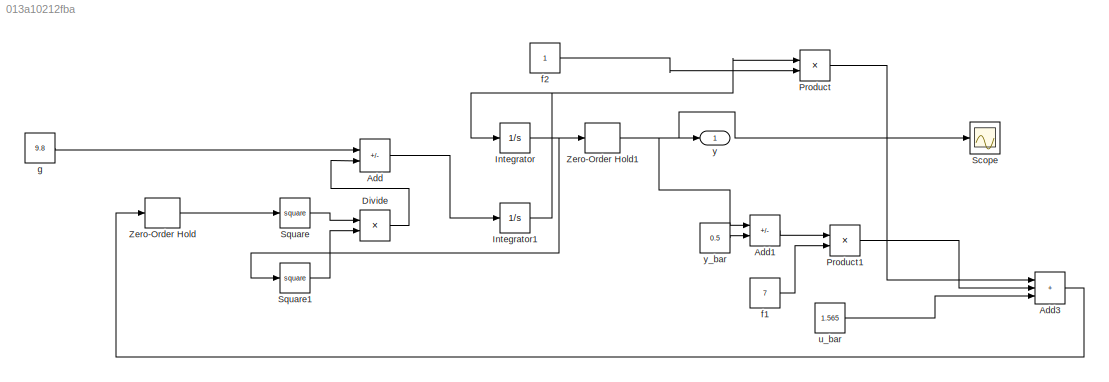
MODEL slx_013a10212fba
KIND model
CONFIG AbsTol = auto
CONFIG EnableMultiTasking = off
CONFIG FixedStep = auto
CONFIG MaxStep = auto
CONFIG MinStep = auto
CONFIG RelTol = 1e-3
CONFIG SampleTimeConstraint = Unconstrained
CONFIG SolverName = VariableStepAuto
CONFIG StartTime = 0.0
CONFIG StopTime = 50
BLOCK [Sum] Add
  IconShape = rectangular
  Inputs = +-
  Ports = [2, 1]
BLOCK [Sum] Add1
  IconShape = rectangular
  Inputs = +-
  Ports = [2, 1]
BLOCK [Sum] Add3
  IconShape = rectangular
  Inputs = +++
  Ports = [3, 1]
BLOCK [Product] Divide
  Inputs = */
  Ports = [2, 1]
BLOCK [Integrator] Integrator
  InitialCondition = 1.3
  Ports = [1, 1]
BLOCK [Integrator] Integrator1
  InitialCondition = 0.5
  Ports = [1, 1]
BLOCK [Product] Product
  Ports = [2, 1]
BLOCK [Product] Product1
  Ports = [2, 1]
BLOCK [Scope] Scope
  Floating = off
  NumInputPorts = 1
  Ports = [1]
  ScopeSpecificationString = Simulink.scopes.TimeScopeBlockCfg('CurrentConfiguration', extmgr.ConfigurationSet(extmgr.Configuration('Core','General UI',true),extmgr.Configuration('Core','Source UI',true),extmgr.Configuration('Sources','WiredSimulink',true),extmgr.Configuration('Visuals','Time Domain',true,'SerializedDisplays',{struct('MinYLimReal','0.13486','MaxYLimReal','1.42946','YLabelReal','','MinYLimMag','0.13486','MaxYL...<+1363ch>
BLOCK [Math] Square
  Operator = square
  Ports = [1, 1]
BLOCK [Math] Square1
  Operator = square
  Ports = [1, 1]
BLOCK [ZeroOrderHold] Zero-Order Hold
  SampleTime = -1
BLOCK [ZeroOrderHold] Zero-Order Hold1
  SampleTime = 0.12
BLOCK [Constant] f1
  Value = 7
BLOCK [Constant] f2
BLOCK [Constant] g
  Value = 9.8
BLOCK [Constant] u_bar
  Value = 1.565
BLOCK [Outport] y
BLOCK [Constant] y_bar
  Value = 0.5
LINE Add1:1 -> Product1:1
LINE Add3:1 -> Zero-Order Hold:1
LINE Add:1 -> Integrator1:1
LINE Divide:1 -> Add:2
NET Integrator1:1 -> Integrator:1, Product:1
NET Integrator:1 -> Square1:1, Zero-Order Hold1:1
LINE Product1:1 -> Add3:2
LINE Product:1 -> Add3:1
LINE Square1:1 -> Divide:2
LINE Square:1 -> Divide:1
NET Zero-Order Hold1:1 -> Add1:1, Scope:1, y:1
LINE Zero-Order Hold:1 -> Square:1
LINE f1:1 -> Product1:2
LINE f2:1 -> Product:2
LINE g:1 -> Add:1
LINE u_bar:1 -> Add3:3
LINE y_bar:1 -> Add1:2
note: NET lines group one-source signal fan-out (src -> all destinations, sorted); 1:1 wires keep LINE
